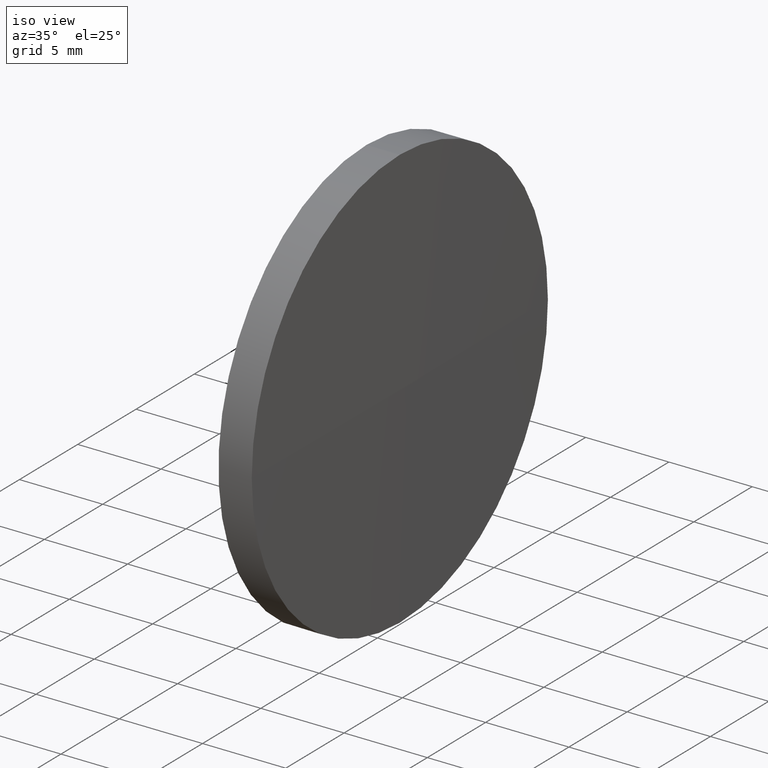
[diagram: clean part render]
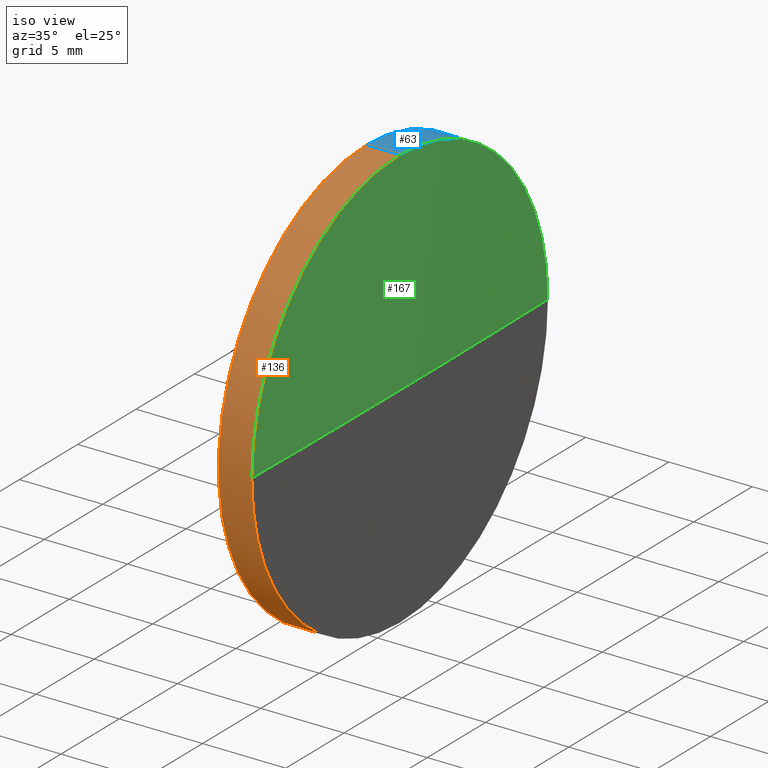
[diagram: same view with three faces highlighted in distinct colors, each labeled with its STEP entity id]
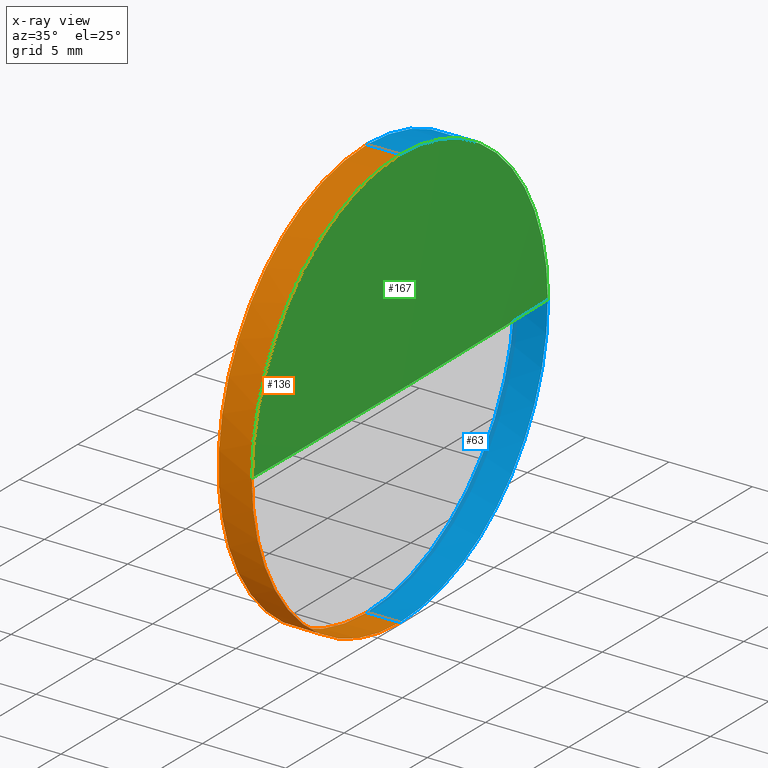
[diagram: x-ray of the same camera — body ghosted, the three highlighted faces saturated]
A machine part, iso view with three faces highlighted in distinct colors.
The next image is the same camera in x-ray (body ghosted, the three faces saturated) — at least one of them is partly hidden behind the body in this view.
Their STEP definitions:

[orange] entity #136 — the highlighted cylindrical surface (partial cylindrical patch) has radius 12.7 mm, axis along (-1, -0, -0).
#1 = DIRECTION ( 'NONE',  ( -1.000000000000000000, -0.0000000000000000000, -0.0000000000000000000 ) ) ;
#2 = VERTEX_POINT ( 'NONE', #18 ) ;
#7 = ORIENTED_EDGE ( 'NONE', *, *, #51, .F. ) ;
#9 = LINE ( 'NONE', #113, #74 ) ;
#13 = DIRECTION ( 'NONE',  ( -1.000000000000000000, -0.0000000000000000000, -0.0000000000000000000 ) ) ;
#18 = CARTESIAN_POINT ( 'NONE',  ( 503.5484435145779700, 171.1402879795670300, -12.70000000000001700 ) ) ;
#19 = EDGE_LOOP ( 'NONE', ( #7, #80, #91, #108, #21 ) ) ;
#21 = ORIENTED_EDGE ( 'NONE', *, *, #79, .F. ) ;
#32 = DIRECTION ( 'NONE',  ( -1.000000000000000000, -0.0000000000000000000, -0.0000000000000000000 ) ) ;
#34 = CYLINDRICAL_SURFACE ( 'NONE', #181, 12.70000000000001700 ) ;
#46 = CARTESIAN_POINT ( 'NONE',  ( 505.5484435145779700, 158.4402879795674700, 0.0000000000000000000 ) ) ;
#47 = VERTEX_POINT ( 'NONE', #46 ) ;
#51 = EDGE_CURVE ( 'NONE', #150, #2, #9, .T. ) ;
#55 = CARTESIAN_POINT ( 'NONE',  ( 505.5484435145779700, 171.1402879795670300, 12.70000000000001700 ) ) ;
#56 = CARTESIAN_POINT ( 'NONE',  ( 505.5484435145779700, 171.1402879795670300, -12.70000000000001700 ) ) ;
#58 = EDGE_CURVE ( 'NONE', #47, #70, #161, .T. ) ;
#59 = VECTOR ( 'NONE', #66, 1000.000000000000000 ) ;
#66 = DIRECTION ( 'NONE',  ( -1.000000000000000000, -0.0000000000000000000, -0.0000000000000000000 ) ) ;
#70 = VERTEX_POINT ( 'NONE', #55 ) ;
#74 = VECTOR ( 'NONE', #13, 1000.000000000000000 ) ;
#79 = EDGE_CURVE ( 'NONE', #2, #145, #184, .T. ) ;
#80 = ORIENTED_EDGE ( 'NONE', *, *, #105, .T. ) ;
#82 = DIRECTION ( 'NONE',  ( -1.000000000000000000, -0.0000000000000000000, -0.0000000000000000000 ) ) ;
#85 = AXIS2_PLACEMENT_3D ( 'NONE', #140, #82, #143 ) ;
#87 = EDGE_CURVE ( 'NONE', #70, #145, #96, .T. ) ;
#91 = ORIENTED_EDGE ( 'NONE', *, *, #58, .T. ) ;
#95 = AXIS2_PLACEMENT_3D ( 'NONE', #146, #159, #144 ) ;
#96 = LINE ( 'NONE', #138, #59 ) ;
#100 = CARTESIAN_POINT ( 'NONE',  ( 497.8102254789016000, 171.1402879795670300, 0.0000000000000000000 ) ) ;
#105 = EDGE_CURVE ( 'NONE', #150, #47, #135, .T. ) ;
#108 = ORIENTED_EDGE ( 'NONE', *, *, #87, .T. ) ;
#113 = CARTESIAN_POINT ( 'NONE',  ( 497.8102254789016000, 171.1402879795670300, -12.70000000000001700 ) ) ;
#114 = AXIS2_PLACEMENT_3D ( 'NONE', #117, #32, #176 ) ;
#117 = CARTESIAN_POINT ( 'NONE',  ( 503.5484435145779700, 171.1402879795670300, 0.0000000000000000000 ) ) ;
#128 = FACE_OUTER_BOUND ( 'NONE', #19, .T. ) ;
#135 = CIRCLE ( 'NONE', #95, 12.70000000000001700 ) ;
#136 = ADVANCED_FACE ( 'NONE', ( #128 ), #34, .T. ) ;
#138 = CARTESIAN_POINT ( 'NONE',  ( 497.8102254789016000, 171.1402879795670300, 12.70000000000001700 ) ) ;
#140 = CARTESIAN_POINT ( 'NONE',  ( 505.5484435145779700, 171.1402879795670300, 0.0000000000000000000 ) ) ;
#143 = DIRECTION ( 'NONE',  ( 0.0000000000000000000, 0.0000000000000000000, 1.000000000000000000 ) ) ;
#144 = DIRECTION ( 'NONE',  ( 0.0000000000000000000, 0.0000000000000000000, 1.000000000000000000 ) ) ;
#145 = VERTEX_POINT ( 'NONE', #174 ) ;
#146 = CARTESIAN_POINT ( 'NONE',  ( 505.5484435145779700, 171.1402879795670300, 0.0000000000000000000 ) ) ;
#150 = VERTEX_POINT ( 'NONE', #56 ) ;
#157 = DIRECTION ( 'NONE',  ( 0.0000000000000000000, 0.0000000000000000000, 1.000000000000000000 ) ) ;
#159 = DIRECTION ( 'NONE',  ( -1.000000000000000000, -0.0000000000000000000, -0.0000000000000000000 ) ) ;
#161 = CIRCLE ( 'NONE', #85, 12.70000000000001700 ) ;
#174 = CARTESIAN_POINT ( 'NONE',  ( 503.5484435145779700, 171.1402879795670300, 12.70000000000001700 ) ) ;
#176 = DIRECTION ( 'NONE',  ( 0.0000000000000000000, 0.0000000000000000000, 1.000000000000000000 ) ) ;
#181 = AXIS2_PLACEMENT_3D ( 'NONE', #100, #1, #157 ) ;
#184 = CIRCLE ( 'NONE', #114, 12.70000000000001700 ) ;

[blue] entity #63 — the highlighted cylindrical surface (partial cylindrical patch) has radius 12.7 mm, axis along (-1, -0, -0).
#2 = VERTEX_POINT ( 'NONE', #18 ) ;
#9 = LINE ( 'NONE', #113, #74 ) ;
#11 = CIRCLE ( 'NONE', #151, 12.70000000000001700 ) ;
#13 = DIRECTION ( 'NONE',  ( -1.000000000000000000, -0.0000000000000000000, -0.0000000000000000000 ) ) ;
#16 = DIRECTION ( 'NONE',  ( 0.0000000000000000000, 0.0000000000000000000, 1.000000000000000000 ) ) ;
#18 = CARTESIAN_POINT ( 'NONE',  ( 503.5484435145779700, 171.1402879795670300, -12.70000000000001700 ) ) ;
#27 = CYLINDRICAL_SURFACE ( 'NONE', #60, 12.70000000000001700 ) ;
#37 = CIRCLE ( 'NONE', #38, 12.70000000000001700 ) ;
#38 = AXIS2_PLACEMENT_3D ( 'NONE', #154, #97, #43 ) ;
#42 = EDGE_CURVE ( 'NONE', #125, #150, #134, .T. ) ;
#43 = DIRECTION ( 'NONE',  ( 0.0000000000000000000, 0.0000000000000000000, 1.000000000000000000 ) ) ;
#44 = DIRECTION ( 'NONE',  ( -1.000000000000000000, -0.0000000000000000000, -0.0000000000000000000 ) ) ;
#51 = EDGE_CURVE ( 'NONE', #150, #2, #9, .T. ) ;
#55 = CARTESIAN_POINT ( 'NONE',  ( 505.5484435145779700, 171.1402879795670300, 12.70000000000001700 ) ) ;
#56 = CARTESIAN_POINT ( 'NONE',  ( 505.5484435145779700, 171.1402879795670300, -12.70000000000001700 ) ) ;
#59 = VECTOR ( 'NONE', #66, 1000.000000000000000 ) ;
#60 = AXIS2_PLACEMENT_3D ( 'NONE', #115, #44, #64 ) ;
#63 = ADVANCED_FACE ( 'NONE', ( #139 ), #27, .T. ) ;
#64 = DIRECTION ( 'NONE',  ( 0.0000000000000000000, 0.0000000000000000000, 1.000000000000000000 ) ) ;
#66 = DIRECTION ( 'NONE',  ( -1.000000000000000000, -0.0000000000000000000, -0.0000000000000000000 ) ) ;
#70 = VERTEX_POINT ( 'NONE', #55 ) ;
#74 = VECTOR ( 'NONE', #13, 1000.000000000000000 ) ;
#75 = EDGE_CURVE ( 'NONE', #70, #125, #37, .T. ) ;
#78 = ORIENTED_EDGE ( 'NONE', *, *, #118, .F. ) ;
#84 = CARTESIAN_POINT ( 'NONE',  ( 505.5484435145779700, 171.1402879795670300, 0.0000000000000000000 ) ) ;
#86 = CARTESIAN_POINT ( 'NONE',  ( 503.5484435145779700, 171.1402879795670300, 0.0000000000000000000 ) ) ;
#87 = EDGE_CURVE ( 'NONE', #70, #145, #96, .T. ) ;
#93 = ORIENTED_EDGE ( 'NONE', *, *, #75, .T. ) ;
#96 = LINE ( 'NONE', #138, #59 ) ;
#97 = DIRECTION ( 'NONE',  ( -1.000000000000000000, -0.0000000000000000000, -0.0000000000000000000 ) ) ;
#110 = ORIENTED_EDGE ( 'NONE', *, *, #42, .T. ) ;
#113 = CARTESIAN_POINT ( 'NONE',  ( 497.8102254789016000, 171.1402879795670300, -12.70000000000001700 ) ) ;
#115 = CARTESIAN_POINT ( 'NONE',  ( 497.8102254789016000, 171.1402879795670300, 0.0000000000000000000 ) ) ;
#118 = EDGE_CURVE ( 'NONE', #145, #2, #11, .T. ) ;
#121 = EDGE_LOOP ( 'NONE', ( #110, #137, #78, #164, #93 ) ) ;
#125 = VERTEX_POINT ( 'NONE', #186 ) ;
#126 = AXIS2_PLACEMENT_3D ( 'NONE', #84, #156, #16 ) ;
#134 = CIRCLE ( 'NONE', #126, 12.70000000000001700 ) ;
#137 = ORIENTED_EDGE ( 'NONE', *, *, #51, .T. ) ;
#138 = CARTESIAN_POINT ( 'NONE',  ( 497.8102254789016000, 171.1402879795670300, 12.70000000000001700 ) ) ;
#139 = FACE_OUTER_BOUND ( 'NONE', #121, .T. ) ;
#145 = VERTEX_POINT ( 'NONE', #174 ) ;
#150 = VERTEX_POINT ( 'NONE', #56 ) ;
#151 = AXIS2_PLACEMENT_3D ( 'NONE', #86, #160, #173 ) ;
#154 = CARTESIAN_POINT ( 'NONE',  ( 505.5484435145779700, 171.1402879795670300, 0.0000000000000000000 ) ) ;
#156 = DIRECTION ( 'NONE',  ( -1.000000000000000000, -0.0000000000000000000, -0.0000000000000000000 ) ) ;
#160 = DIRECTION ( 'NONE',  ( -1.000000000000000000, -0.0000000000000000000, -0.0000000000000000000 ) ) ;
#164 = ORIENTED_EDGE ( 'NONE', *, *, #87, .F. ) ;
#173 = DIRECTION ( 'NONE',  ( 0.0000000000000000000, 0.0000000000000000000, 1.000000000000000000 ) ) ;
#174 = CARTESIAN_POINT ( 'NONE',  ( 503.5484435145779700, 171.1402879795670300, 12.70000000000001700 ) ) ;
#186 = CARTESIAN_POINT ( 'NONE',  ( 505.5484435145779700, 183.8402879795667100, 1.555301434917087000E-015 ) ) ;

[green] entity #167 — the highlighted spherical surface has radius 806.5 mm.
#3 = FACE_OUTER_BOUND ( 'NONE', #89, .T. ) ;
#14 = DIRECTION ( 'NONE',  ( 0.0000000000000000000, -1.224646799147353200E-016, 1.000000000000000000 ) ) ;
#15 = CARTESIAN_POINT ( 'NONE',  ( 505.6484435145779300, 171.1402879795670900, 0.0000000000000000000 ) ) ;
#17 = AXIS2_PLACEMENT_3D ( 'NONE', #72, #69, #31 ) ;
#30 = CARTESIAN_POINT ( 'NONE',  ( -300.8515564854678800, 171.1402879795671500, 0.0000000000000000000 ) ) ;
#31 = DIRECTION ( 'NONE',  ( 0.0000000000000000000, -1.000000000000000000, 0.0000000000000000000 ) ) ;
#35 = CARTESIAN_POINT ( 'NONE',  ( -300.8515564854678800, 171.1402879795671500, 0.0000000000000000000 ) ) ;
#37 = CIRCLE ( 'NONE', #38, 12.70000000000001700 ) ;
#38 = AXIS2_PLACEMENT_3D ( 'NONE', #154, #97, #43 ) ;
#40 = ORIENTED_EDGE ( 'NONE', *, *, #48, .T. ) ;
#43 = DIRECTION ( 'NONE',  ( 0.0000000000000000000, 0.0000000000000000000, 1.000000000000000000 ) ) ;
#46 = CARTESIAN_POINT ( 'NONE',  ( 505.5484435145779700, 158.4402879795674700, 0.0000000000000000000 ) ) ;
#47 = VERTEX_POINT ( 'NONE', #46 ) ;
#48 = EDGE_CURVE ( 'NONE', #50, #125, #99, .T. ) ;
#50 = VERTEX_POINT ( 'NONE', #15 ) ;
#55 = CARTESIAN_POINT ( 'NONE',  ( 505.5484435145779700, 171.1402879795670300, 12.70000000000001700 ) ) ;
#58 = EDGE_CURVE ( 'NONE', #47, #70, #161, .T. ) ;
#67 = AXIS2_PLACEMENT_3D ( 'NONE', #30, #14, #170 ) ;
#68 = DIRECTION ( 'NONE',  ( 0.0000000000000000000, 0.0000000000000000000, -1.000000000000000000 ) ) ;
#69 = DIRECTION ( 'NONE',  ( 0.0000000000000000000, 0.0000000000000000000, 1.000000000000000000 ) ) ;
#70 = VERTEX_POINT ( 'NONE', #55 ) ;
#72 = CARTESIAN_POINT ( 'NONE',  ( -300.8515564854678800, 171.1402879795671500, 0.0000000000000000000 ) ) ;
#75 = EDGE_CURVE ( 'NONE', #70, #125, #37, .T. ) ;
#82 = DIRECTION ( 'NONE',  ( -1.000000000000000000, -0.0000000000000000000, -0.0000000000000000000 ) ) ;
#85 = AXIS2_PLACEMENT_3D ( 'NONE', #140, #82, #143 ) ;
#89 = EDGE_LOOP ( 'NONE', ( #182, #40, #175, #166 ) ) ;
#97 = DIRECTION ( 'NONE',  ( -1.000000000000000000, -0.0000000000000000000, -0.0000000000000000000 ) ) ;
#99 = CIRCLE ( 'NONE', #67, 806.5000000000458200 ) ;
#101 = CIRCLE ( 'NONE', #165, 806.5000000000457000 ) ;
#103 = EDGE_CURVE ( 'NONE', #50, #47, #101, .T. ) ;
#125 = VERTEX_POINT ( 'NONE', #186 ) ;
#132 = DIRECTION ( 'NONE',  ( -1.000000000000000000, 0.0000000000000000000, 0.0000000000000000000 ) ) ;
#140 = CARTESIAN_POINT ( 'NONE',  ( 505.5484435145779700, 171.1402879795670300, 0.0000000000000000000 ) ) ;
#143 = DIRECTION ( 'NONE',  ( 0.0000000000000000000, 0.0000000000000000000, 1.000000000000000000 ) ) ;
#154 = CARTESIAN_POINT ( 'NONE',  ( 505.5484435145779700, 171.1402879795670300, 0.0000000000000000000 ) ) ;
#161 = CIRCLE ( 'NONE', #85, 12.70000000000001700 ) ;
#165 = AXIS2_PLACEMENT_3D ( 'NONE', #35, #68, #132 ) ;
#166 = ORIENTED_EDGE ( 'NONE', *, *, #58, .F. ) ;
#167 = ADVANCED_FACE ( 'NONE', ( #3 ), #185, .T. ) ;
#170 = DIRECTION ( 'NONE',  ( 0.0000000000000000000, -1.000000000000000000, -1.224646799147353200E-016 ) ) ;
#175 = ORIENTED_EDGE ( 'NONE', *, *, #75, .F. ) ;
#182 = ORIENTED_EDGE ( 'NONE', *, *, #103, .F. ) ;
#185 = SPHERICAL_SURFACE ( 'NONE', #17, 806.5000000000458200 ) ;
#186 = CARTESIAN_POINT ( 'NONE',  ( 505.5484435145779700, 183.8402879795667100, 1.555301434917087000E-015 ) ) ;